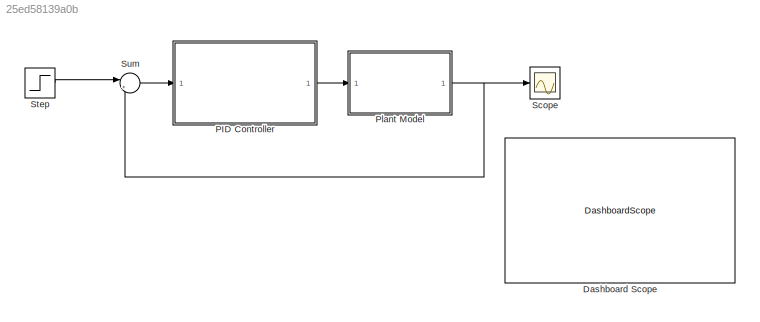
MODEL slx_25ed58139a0b
KIND model
CONFIG AbsTol = auto
CONFIG EnableMultiTasking = off
CONFIG FixedStep = auto
CONFIG MaxStep = auto
CONFIG MinStep = auto
CONFIG RelTol = 1e-3
CONFIG SampleTimeConstraint = Unconstrained
CONFIG Solver = VariableStepAuto
CONFIG SolverName = VariableStepAuto
CONFIG StartTime = 0.0
CONFIG StopTime = 120
BLOCK [DashboardScope] Dashboard Scope
BLOCK [ModelReference] PID Controller
  ModelNameDialog = PID_Controller
  ModelReferenceVersion = 1.9
  Ports = [1, 1]
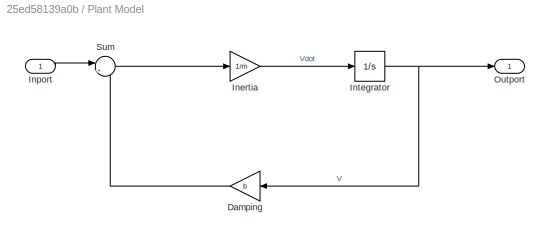
BLOCK [SubSystem] Plant Model
  Ports = [1, 1]
  RequestExecContextInheritance = off
BLOCK [Gain] Plant Model/Damping
  Gain = b
BLOCK [Gain] Plant Model/Inertia
  Gain = 1/m
BLOCK [Inport] Plant Model/Inport
BLOCK [Integrator] Plant Model/Integrator
  Ports = [1, 1]
BLOCK [Outport] Plant Model/Outport
BLOCK [Sum] Plant Model/Sum
  Inputs = |+-
  Ports = [2, 1]
BLOCK [Scope] Scope
  Floating = off
  NumInputPorts = 1
  Ports = [1]
  ScopeSpecificationString = Simulink.scopes.TimeScopeBlockCfg('CurrentConfiguration', extmgr.ConfigurationSet(extmgr.Configuration('Core','General UI',true),extmgr.Configuration('Core','Source UI',true),extmgr.Configuration('Sources','WiredSimulink',true),extmgr.Configuration('Visuals','Time Domain',true,'SerializedDisplays',{struct('MinYLimReal','-65.94962','MaxYLimReal','593.54654','YLabelReal','','MinYLimMag','0.00000','M...<+1372ch>
BLOCK [Step] Step
  After = u
  SampleTime = 0
  Time = 0
BLOCK [Sum] Sum
  Inputs = |+-
  NameLocation = top
  Ports = [2, 1]
LINE PID Controller:1 -> Plant Model:1
LINE Plant Model/Damping:1 -> Plant Model/Sum:2
LINE Plant Model/Inertia:1 -> Plant Model/Integrator:1
LINE Plant Model/Inport:1 -> Plant Model/Sum:1
NET Plant Model/Integrator:1 -> Plant Model/Damping:1, Plant Model/Outport:1
LINE Plant Model/Sum:1 -> Plant Model/Inertia:1
NET Plant Model:1 -> Scope:1, Sum:2
LINE Step:1 -> Sum:1
LINE Sum:1 -> PID Controller:1
note: NET lines group one-source signal fan-out (src -> all destinations, sorted); 1:1 wires keep LINE
